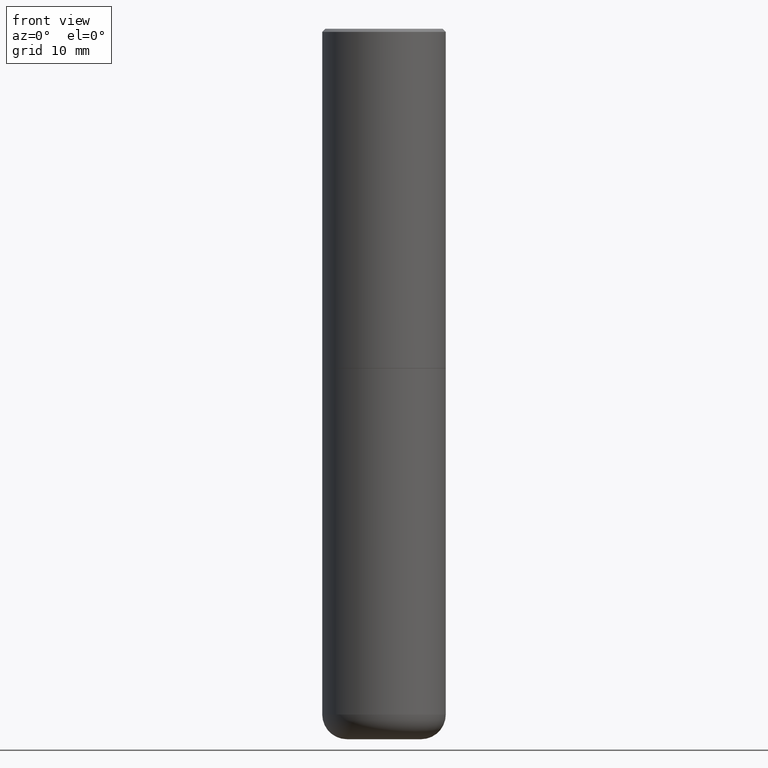
[diagram: clean part render]
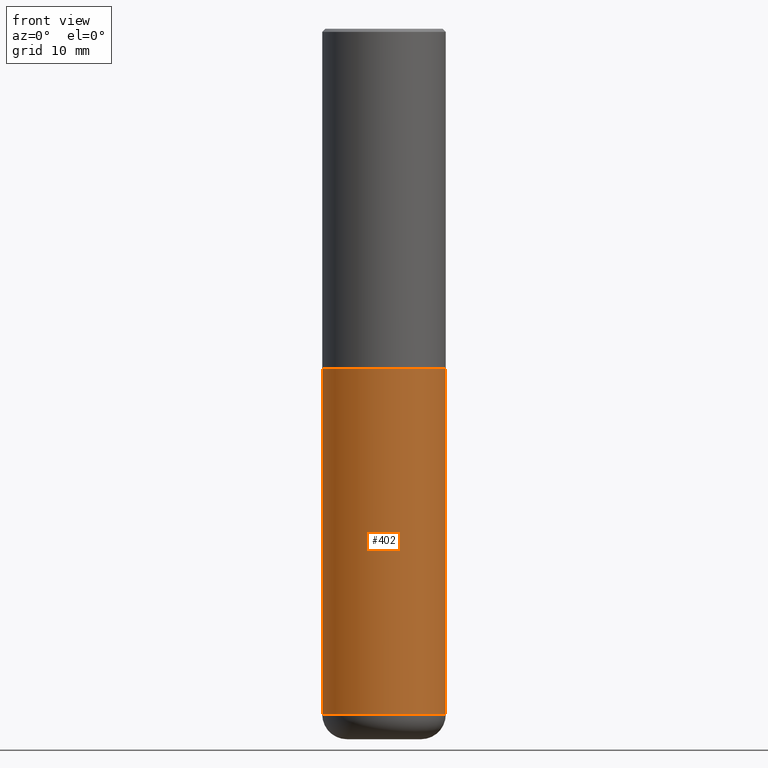
[diagram: same view with one face highlighted and labeled with its STEP entity id]
A machine part, front view. The second image highlights one B-rep face of the part: STEP entity #402.
In plain terms, the highlighted cylindrical surface (partial cylindrical patch) has radius 10 mm, axis along (-0, 0, 1).
Its self-contained STEP definition (entity closure, byte-faithful):
#2 = CIRCLE ( 'NONE', #246, 0.3937000000000000499 ) ;
#10 = CARTESIAN_POINT ( 'NONE',  ( -0.3937000000000001054, 2.797406750687515181E-15, -1.936584745033357016E-29 ) ) ;
#22 = CIRCLE ( 'NONE', #216, 0.3937000000000001054 ) ;
#34 = VECTOR ( 'NONE', #47, 39.37007874015748143 ) ;
#43 = VERTEX_POINT ( 'NONE', #239 ) ;
#47 = DIRECTION ( 'NONE',  ( -2.445468806185136877E-29, 3.491481338843145188E-15, 1.000000000000000000 ) ) ;
#54 = DIRECTION ( 'NONE',  ( -2.445468806185136597E-29, 3.491481338843145583E-15, 1.000000000000000000 ) ) ;
#82 = EDGE_CURVE ( 'NONE', #43, #195, #2, .T. ) ;
#88 = CARTESIAN_POINT ( 'NONE',  ( 5.295418152913293224E-29, -7.560453691130945845E-15, -2.165399999999999547 ) ) ;
#91 = DIRECTION ( 'NONE',  ( 1.000000000000000000, -6.982962677686261977E-15, 0.000000000000000000 ) ) ;
#93 = FACE_OUTER_BOUND ( 'NONE', #379, .T. ) ;
#99 = EDGE_CURVE ( 'NONE', #338, #195, #248, .T. ) ;
#101 = ORIENTED_EDGE ( 'NONE', *, *, #82, .F. ) ;
#155 = DIRECTION ( 'NONE',  ( -2.445468806185136597E-29, 3.491481338843145583E-15, 1.000000000000000000 ) ) ;
#166 = EDGE_CURVE ( 'NONE', #211, #43, #369, .T. ) ;
#180 = DIRECTION ( 'NONE',  ( 1.000000000000000000, -6.982962677686265133E-15, 0.000000000000000000 ) ) ;
#188 = CARTESIAN_POINT ( 'NONE',  ( 1.068694322990966450E-28, -1.525812259887842897E-14, -4.370099999999998985 ) ) ;
#195 = VERTEX_POINT ( 'NONE', #321 ) ;
#208 = ORIENTED_EDGE ( 'NONE', *, *, #352, .T. ) ;
#211 = VERTEX_POINT ( 'NONE', #220 ) ;
#216 = AXIS2_PLACEMENT_3D ( 'NONE', #188, #155, #91 ) ;
#220 = CARTESIAN_POINT ( 'NONE',  ( -0.3937000000000001054, -1.246071584819091497E-14, -4.370099999999998985 ) ) ;
#227 = DIRECTION ( 'NONE',  ( 1.000000000000000000, -6.982962677686266711E-15, 4.876176775795935793E-29 ) ) ;
#239 = CARTESIAN_POINT ( 'NONE',  ( -0.3937000000000000499, -8.611881394317173410E-15, -2.165399999999999547 ) ) ;
#246 = AXIS2_PLACEMENT_3D ( 'NONE', #88, #358, #180 ) ;
#248 = LINE ( 'NONE', #322, #340 ) ;
#261 = CARTESIAN_POINT ( 'NONE',  ( 0.3937000000000001054, -1.800731500508351219E-14, -4.370099999999998985 ) ) ;
#277 = ORIENTED_EDGE ( 'NONE', *, *, #99, .T. ) ;
#293 = ORIENTED_EDGE ( 'NONE', *, *, #166, .F. ) ;
#312 = DIRECTION ( 'NONE',  ( -2.445468806185136877E-29, 3.491481338843145188E-15, 1.000000000000000000 ) ) ;
#321 = CARTESIAN_POINT ( 'NONE',  ( 0.3937000000000000499, -1.030964609733602906E-14, -2.165399999999999547 ) ) ;
#322 = CARTESIAN_POINT ( 'NONE',  ( 0.3937000000000001054, -2.749192406205084005E-15, 1.919750796630860452E-29 ) ) ;
#325 = AXIS2_PLACEMENT_3D ( 'NONE', #339, #54, #227 ) ;
#338 = VERTEX_POINT ( 'NONE', #261 ) ;
#339 = CARTESIAN_POINT ( 'NONE',  ( 0.000000000000000000, 0.000000000000000000, 0.000000000000000000 ) ) ;
#340 = VECTOR ( 'NONE', #312, 39.37007874015748143 ) ;
#352 = EDGE_CURVE ( 'NONE', #211, #338, #22, .T. ) ;
#358 = DIRECTION ( 'NONE',  ( -2.445468806185136597E-29, 3.491481338843145583E-15, 1.000000000000000000 ) ) ;
#369 = LINE ( 'NONE', #10, #34 ) ;
#379 = EDGE_LOOP ( 'NONE', ( #293, #208, #277, #101 ) ) ;
#389 = CYLINDRICAL_SURFACE ( 'NONE', #325, 0.3937000000000001054 ) ;
#402 = ADVANCED_FACE ( 'NONE', ( #93 ), #389, .T. ) ;